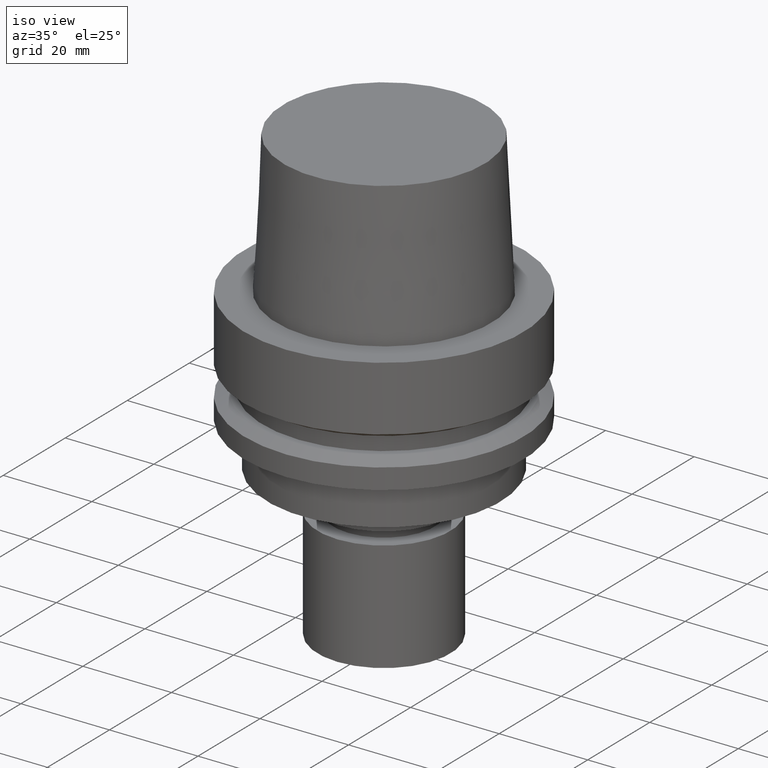
[diagram: clean part render]
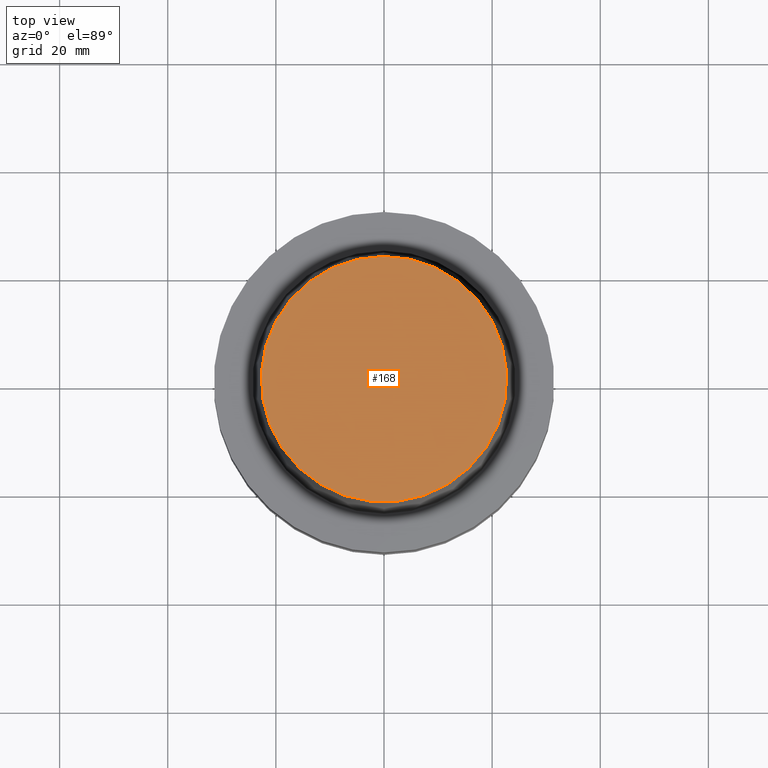
[diagram: tour spotlight — one face highlighted and labeled with its STEP entity id]
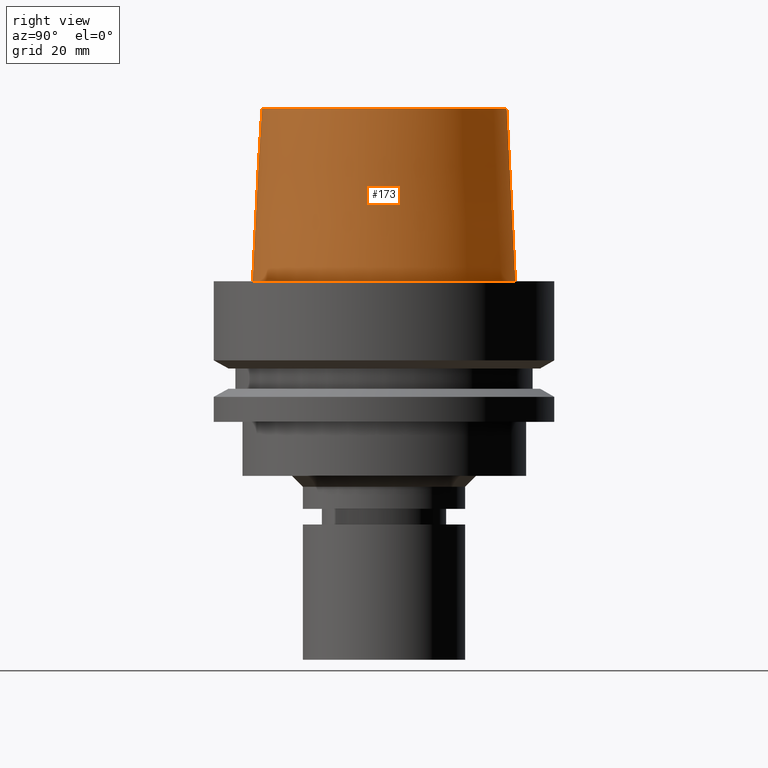
[diagram: tour spotlight — one face highlighted and labeled with its STEP entity id]
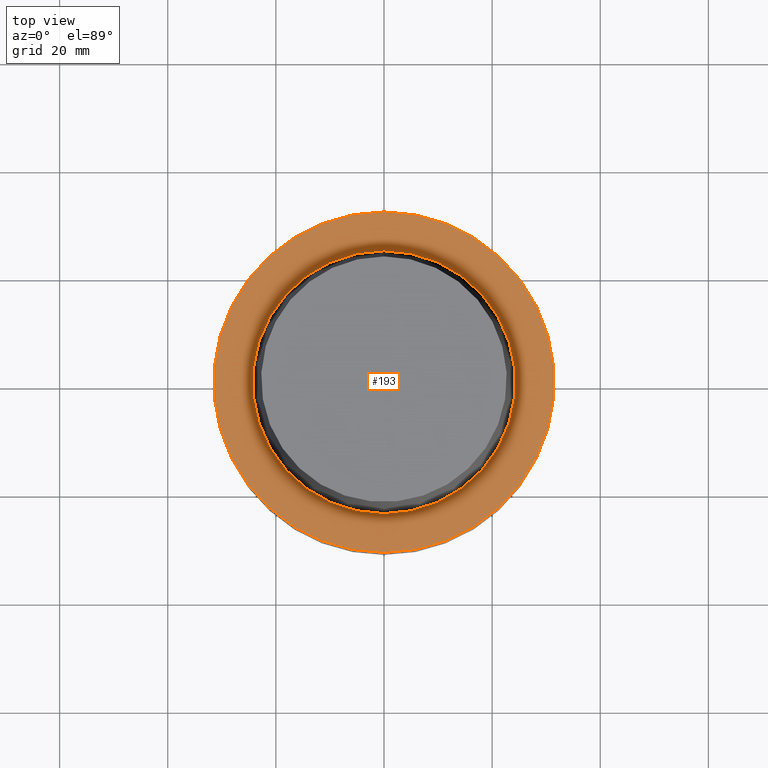
[diagram: tour spotlight — one face highlighted and labeled with its STEP entity id]
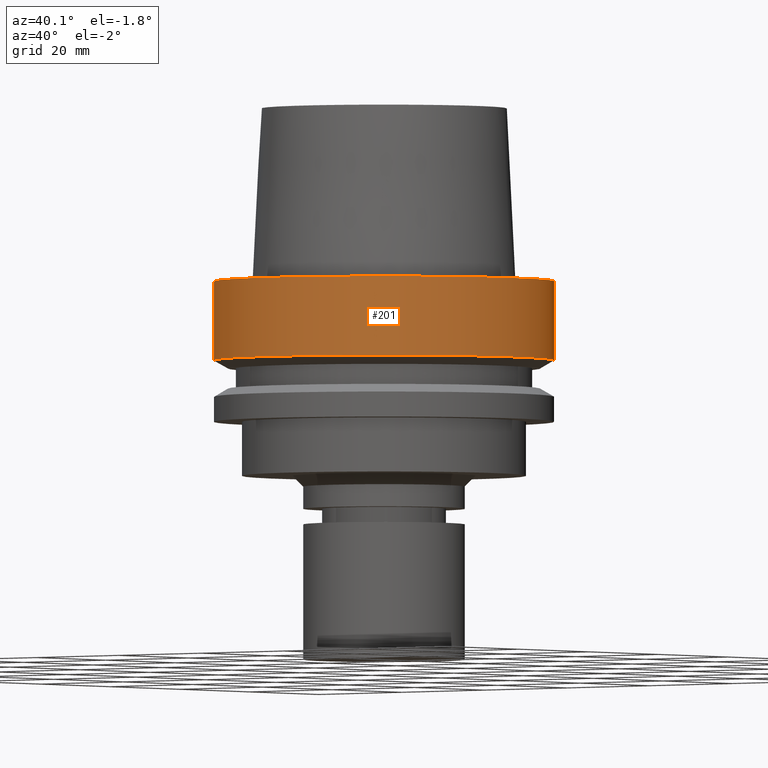
[diagram: tour spotlight — one face highlighted and labeled with its STEP entity id]
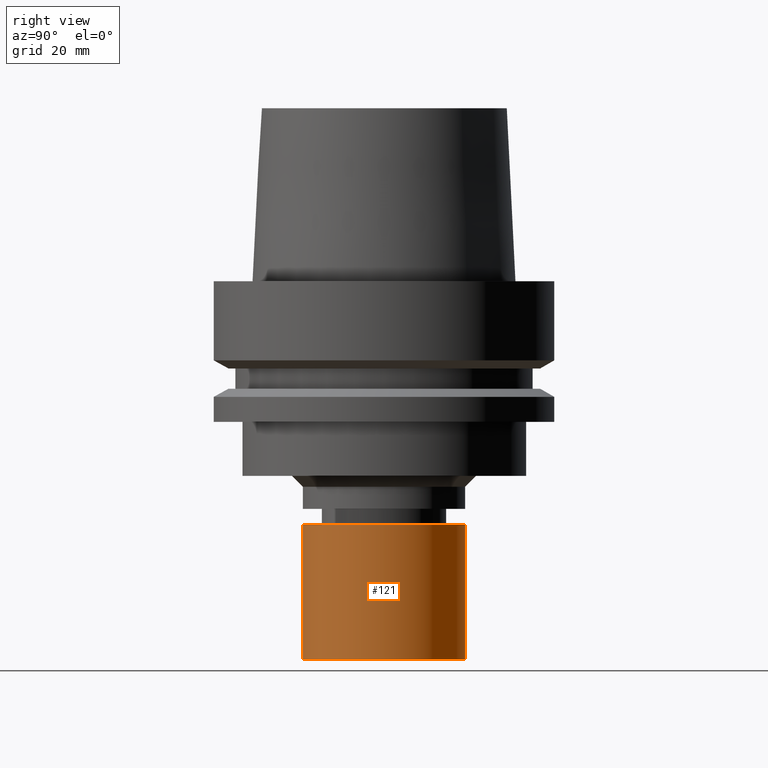
[diagram: tour spotlight — one face highlighted and labeled with its STEP entity id]
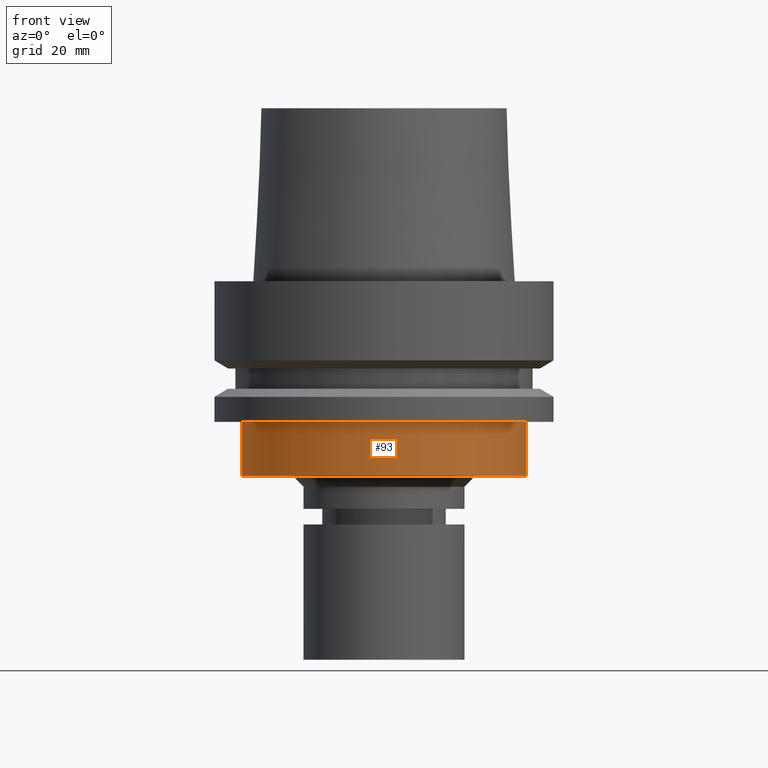
[diagram: tour spotlight — one face highlighted and labeled with its STEP entity id]
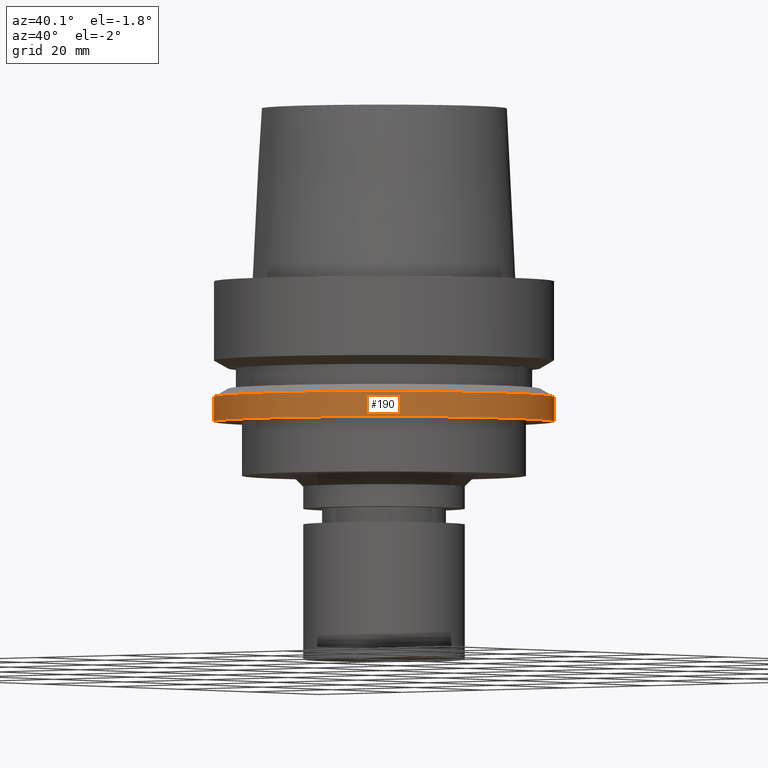
[diagram: tour spotlight — one face highlighted and labeled with its STEP entity id]
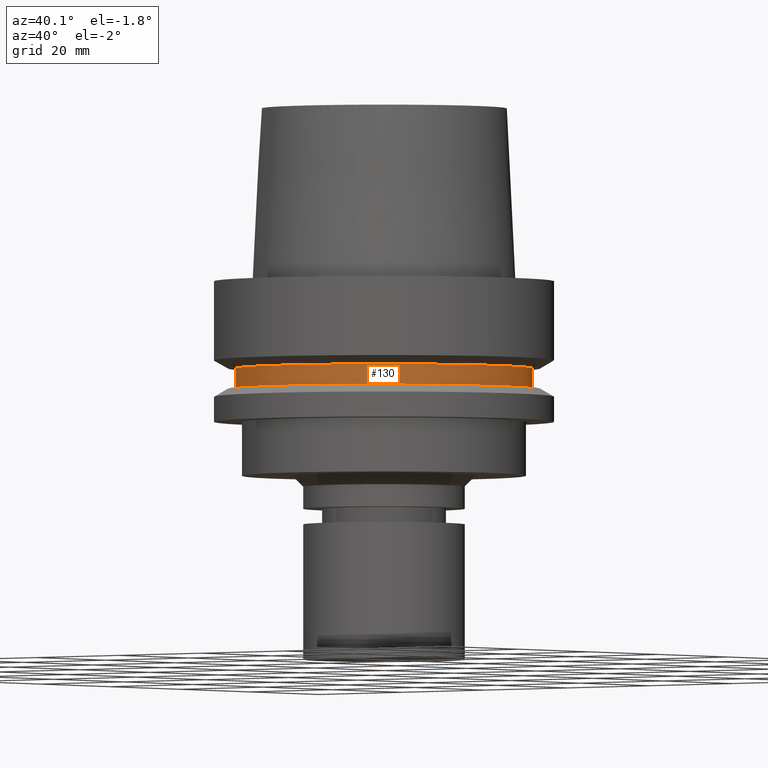
[diagram: tour spotlight — one face highlighted and labeled with its STEP entity id]
A machine part: a face-by-face anatomy tour. The part has 24 B-rep faces; the first image is the clean iso view, then the 8 largest visible faces are spotlighted one at a time (largest first), each with its STEP entity span.

Face 1 — top view, entity #168. In plain terms, the highlighted planar face has unit normal (-0, 0, 1).
Definition (entity closure, byte-faithful):
#168=ADVANCED_FACE('Unnamed[1]',(#355),#356,.T.);
#175=EDGE_CURVE('Unnamed[1]',#366,#366,#367,.T.);
#355=FACE_OUTER_BOUND('',#587,.T.);
#356=PLANE('',#588);
#366=VERTEX_POINT('',#601);
#367=CIRCLE('',#602,22.715);
#587=EDGE_LOOP('',(#800));
#588=AXIS2_PLACEMENT_3D('',#801,#802,#803);
#601=CARTESIAN_POINT('',(-1.95943487863576E-015,22.715,32.0));
#602=AXIS2_PLACEMENT_3D('',#813,#814,#815);
#800=ORIENTED_EDGE('',*,*,#175,.T.);
#801=CARTESIAN_POINT('',(-1.95943487863576E-015,11.3575,32.0));
#802=DIRECTION('',(-6.12323399573677E-017,9.72362339746437E-016,1.0));
#803=DIRECTION('',(5.47128686183263E-032,1.0,-9.72362339746437E-016));
#813=CARTESIAN_POINT('',(-1.95943487863576E-015,-3.91886975727153E-015,32.0));
#814=DIRECTION('',(-6.12323399573676E-017,-1.22464679914732E-016,1.0));
#815=DIRECTION('',(-1.23259516440784E-032,1.0,1.22464679914732E-016));

Face 2 — right view, entity #173. In plain terms, the highlighted conical surface has half-angle 2.862 deg.
Definition (entity closure, byte-faithful):
#114=EDGE_CURVE('Unnamed[1]',#272,#272,#273,.T.);
#173=ADVANCED_FACE('Unnamed[1]',(#362,#363),#364,.T.);
#175=EDGE_CURVE('Unnamed[1]',#366,#366,#367,.T.);
#272=VERTEX_POINT('',#484);
#273=CIRCLE('',#485,24.315);
#362=FACE_BOUND('',#596,.T.);
#363=FACE_BOUND('',#597,.T.);
#364=CONICAL_SURFACE('',#598,23.515,0.0499583957219433);
#366=VERTEX_POINT('',#601);
#367=CIRCLE('',#602,22.715);
#484=CARTESIAN_POINT('',(-2.99705514225764E-031,24.315,2.97772869212679E-015));
#485=AXIS2_PLACEMENT_3D('',#709,#710,#711);
#596=EDGE_LOOP('',(#808));
#597=EDGE_LOOP('',(#809));
#598=AXIS2_PLACEMENT_3D('',#810,#811,#812);
#601=CARTESIAN_POINT('',(-1.95943487863576E-015,22.715,32.0));
#602=AXIS2_PLACEMENT_3D('',#813,#814,#815);
#709=CARTESIAN_POINT('',(0.0,0.0,0.0));
#710=DIRECTION('',(-6.12323399573677E-017,-1.22464679914747E-016,1.0));
#711=DIRECTION('',(-1.23259516440776E-032,1.0,1.22464679914747E-016));
#808=ORIENTED_EDGE('',*,*,#175,.F.);
#809=ORIENTED_EDGE('',*,*,#114,.T.);
#810=CARTESIAN_POINT('',(-9.79717439317882E-016,-1.95943487863576E-015,16.0));
#811=DIRECTION('',(6.12323399573677E-017,1.2246467991474E-016,-1.0));
#812=DIRECTION('',(-1.2325951644078E-032,1.0,1.2246467991474E-016));
#813=CARTESIAN_POINT('',(-1.95943487863576E-015,-3.91886975727153E-015,32.0));
#814=DIRECTION('',(-6.12323399573676E-017,-1.22464679914732E-016,1.0));
#815=DIRECTION('',(-1.23259516440784E-032,1.0,1.22464679914732E-016));

Face 3 — top view, entity #193. In plain terms, the highlighted planar face has unit normal (-0, -0, 1).
Definition (entity closure, byte-faithful):
#114=EDGE_CURVE('Unnamed[1]',#272,#272,#273,.T.);
#147=EDGE_CURVE('Unnamed[1]',#324,#324,#325,.T.);
#193=ADVANCED_FACE('Unnamed[1]',(#394,#395),#396,.T.);
#272=VERTEX_POINT('',#484);
#273=CIRCLE('',#485,24.315);
#324=VERTEX_POINT('',#549);
#325=CIRCLE('',#550,31.5000000000001);
#394=FACE_BOUND('',#636,.T.);
#395=FACE_OUTER_BOUND('',#637,.T.);
#396=PLANE('',#638);
#484=CARTESIAN_POINT('',(-2.99705514225764E-031,24.315,2.97772869212679E-015));
#485=AXIS2_PLACEMENT_3D('',#709,#710,#711);
#549=CARTESIAN_POINT('',(-3.88267476788467E-031,31.5000000000001,3.85763741731417E-015));
#550=AXIS2_PLACEMENT_3D('',#768,#769,#770);
#636=EDGE_LOOP('',(#844));
#637=EDGE_LOOP('',(#845));
#638=AXIS2_PLACEMENT_3D('',#846,#847,#848);
#709=CARTESIAN_POINT('',(0.0,0.0,0.0));
#710=DIRECTION('',(-6.12323399573677E-017,-1.22464679914747E-016,1.0));
#711=DIRECTION('',(-1.23259516440776E-032,1.0,1.22464679914747E-016));
#768=CARTESIAN_POINT('',(0.0,0.0,0.0));
#769=DIRECTION('',(-6.12323399573677E-017,-1.22464679914718E-016,1.0));
#770=DIRECTION('',(-1.23259516440783E-032,1.0,1.22464679914718E-016));
#844=ORIENTED_EDGE('',*,*,#114,.F.);
#845=ORIENTED_EDGE('',*,*,#147,.T.);
#846=CARTESIAN_POINT('',(-3.43986495507116E-031,27.9075,3.41768305472048E-015));
#847=DIRECTION('',(-6.12323399573677E-017,-1.22464679914735E-016,1.0));
#848=DIRECTION('',(-1.23259516440783E-032,1.0,1.22464679914735E-016));

Face 4 — auxiliary view, entity #201. In plain terms, the highlighted cylindrical surface (bore or boss wall) has radius 31.5 mm, axis along (-0, -0, 1).
Definition (entity closure, byte-faithful):
#147=EDGE_CURVE('Unnamed[1]',#324,#324,#325,.T.);
#195=EDGE_CURVE('Unnamed[1]',#398,#398,#399,.T.);
#201=ADVANCED_FACE('Unnamed[1]',(#406,#407),#408,.T.);
#324=VERTEX_POINT('',#549);
#325=CIRCLE('',#550,31.5000000000001);
#398=VERTEX_POINT('',#641);
#399=CIRCLE('',#642,31.5);
#406=FACE_BOUND('',#651,.T.);
#407=FACE_BOUND('',#652,.T.);
#408=CYLINDRICAL_SURFACE('',#653,31.5);
#549=CARTESIAN_POINT('',(-3.88267476788467E-031,31.5000000000001,3.85763741731417E-015));
#550=AXIS2_PLACEMENT_3D('',#768,#769,#770);
#641=CARTESIAN_POINT('',(8.95369947681261E-016,31.5,-14.6225009252407));
#642=AXIS2_PLACEMENT_3D('',#849,#850,#851);
#651=EDGE_LOOP('',(#858));
#652=EDGE_LOOP('',(#859));
#653=AXIS2_PLACEMENT_3D('',#860,#861,#862);
#768=CARTESIAN_POINT('',(0.0,0.0,0.0));
#769=DIRECTION('',(-6.12323399573677E-017,-1.22464679914718E-016,1.0));
#770=DIRECTION('',(-1.23259516440783E-032,1.0,1.22464679914718E-016));
#849=CARTESIAN_POINT('',(8.95369947681262E-016,1.79073989536252E-015,-14.6225009252407));
#850=DIRECTION('',(-6.12323399573677E-017,-1.22464679914719E-016,1.0));
#851=DIRECTION('',(-1.23259516440783E-032,1.0,1.22464679914719E-016));
#858=ORIENTED_EDGE('',*,*,#147,.F.);
#859=ORIENTED_EDGE('',*,*,#195,.T.);
#860=CARTESIAN_POINT('',(4.47684973840631E-016,8.95369947681262E-016,-7.31125046262035));
#861=DIRECTION('',(-6.12323399573677E-017,-1.22464679914719E-016,1.0));
#862=DIRECTION('',(-1.23259516440783E-032,1.0,1.22464679914719E-016));

Face 5 — right view, entity #121. In plain terms, the highlighted cylindrical surface (bore or boss wall) has radius 15 mm, axis along (0, 0, -1).
Definition (entity closure, byte-faithful):
#84=EDGE_CURVE('Unnamed[1]',#226,#226,#227,.T.);
#121=ADVANCED_FACE('Unnamed[1]',(#282,#283),#284,.T.);
#160=EDGE_CURVE('Unnamed[1]',#345,#345,#346,.T.);
#226=VERTEX_POINT('',#427);
#227=CIRCLE('',#428,15.0);
#282=FACE_BOUND('',#497,.T.);
#283=FACE_BOUND('',#498,.T.);
#284=CYLINDRICAL_SURFACE('',#499,15.0);
#345=VERTEX_POINT('',#575);
#346=CIRCLE('',#576,15.0000000000001);
#427=CARTESIAN_POINT('',(4.28626379701574E-015,15.0,-70.0));
#428=AXIS2_PLACEMENT_3D('',#660,#661,#662);
#497=EDGE_LOOP('',(#719));
#498=EDGE_LOOP('',(#720));
#499=AXIS2_PLACEMENT_3D('',#721,#722,#723);
#575=CARTESIAN_POINT('',(2.75545529808155E-015,15.0000000000001,-45.0));
#576=AXIS2_PLACEMENT_3D('',#792,#793,#794);
#660=CARTESIAN_POINT('',(4.28626379701574E-015,8.57252759403147E-015,-70.0));
#661=DIRECTION('',(6.12323399573677E-017,1.22464679914735E-016,-1.0));
#662=DIRECTION('',(-1.23259516440783E-032,1.0,1.22464679914735E-016));
#719=ORIENTED_EDGE('',*,*,#84,.F.);
#720=ORIENTED_EDGE('',*,*,#160,.T.);
#721=CARTESIAN_POINT('',(3.52085954754864E-015,7.04171909509728E-015,-57.5));
#722=DIRECTION('',(6.12323399573677E-017,1.22464679914735E-016,-1.0));
#723=DIRECTION('',(-1.23259516440783E-032,1.0,1.22464679914735E-016));
#792=CARTESIAN_POINT('',(2.75545529808155E-015,5.51091059616309E-015,-45.0));
#793=DIRECTION('',(6.12323399573677E-017,1.22464679914735E-016,-1.0));
#794=DIRECTION('',(-1.23259516440783E-032,1.0,1.22464679914735E-016));

Face 6 — front view, entity #93. In plain terms, the highlighted cylindrical surface (bore or boss wall) has radius 26.3 mm, axis along (-0, -0, 1).
Definition (entity closure, byte-faithful):
#93=ADVANCED_FACE('Unnamed[1]',(#238,#239),#240,.T.);
#162=EDGE_CURVE('Unnamed[1]',#348,#348,#349,.T.);
#170=EDGE_CURVE('Unnamed[1]',#358,#358,#359,.T.);
#238=FACE_BOUND('',#441,.T.);
#239=FACE_BOUND('',#442,.T.);
#240=CYLINDRICAL_SURFACE('',#443,26.3);
#348=VERTEX_POINT('',#579);
#349=CIRCLE('',#580,26.3);
#358=VERTEX_POINT('',#591);
#359=CIRCLE('',#592,26.3);
#441=EDGE_LOOP('',(#671));
#442=EDGE_LOOP('',(#672));
#443=AXIS2_PLACEMENT_3D('',#673,#674,#675);
#579=CARTESIAN_POINT('',(2.20436423846524E-015,26.3,-36.0));
#580=AXIS2_PLACEMENT_3D('',#795,#796,#797);
#591=CARTESIAN_POINT('',(1.59204083889154E-015,26.3,-25.9999999999997));
#592=AXIS2_PLACEMENT_3D('',#804,#805,#806);
#671=ORIENTED_EDGE('',*,*,#170,.F.);
#672=ORIENTED_EDGE('',*,*,#162,.T.);
#673=CARTESIAN_POINT('',(1.89820253867839E-015,3.79640507735677E-015,-30.9999999999998));
#674=DIRECTION('',(-6.12323399573677E-017,-1.22464679914732E-016,1.0));
#675=DIRECTION('',(-1.23259516440797E-032,1.0,1.22464679914732E-016));
#795=CARTESIAN_POINT('',(2.20436423846524E-015,4.40872847693047E-015,-36.0));
#796=DIRECTION('',(-6.12323399573677E-017,-1.22464679914732E-016,1.0));
#797=DIRECTION('',(-1.23259516440797E-032,1.0,1.22464679914732E-016));
#804=CARTESIAN_POINT('',(1.59204083889154E-015,3.18408167778308E-015,-25.9999999999997));
#805=DIRECTION('',(-6.12323399573677E-017,-1.22464679914732E-016,1.0));
#806=DIRECTION('',(-1.23259516440797E-032,1.0,1.22464679914732E-016));

Face 7 — auxiliary view, entity #190. In plain terms, the highlighted cylindrical surface (bore or boss wall) has radius 31.5 mm, axis along (-0, -0, 1).
Definition (entity closure, byte-faithful):
#112=EDGE_CURVE('Unnamed[1]',#269,#269,#270,.T.);
#152=EDGE_CURVE('Unnamed[1]',#332,#332,#333,.T.);
#190=ADVANCED_FACE('Unnamed[1]',(#389,#390),#391,.T.);
#269=VERTEX_POINT('',#480);
#270=CIRCLE('',#481,31.5);
#332=VERTEX_POINT('',#559);
#333=CIRCLE('',#560,31.4999999999998);
#389=FACE_BOUND('',#630,.T.);
#390=FACE_BOUND('',#631,.T.);
#391=CYLINDRICAL_SURFACE('',#632,31.4999999999999);
#480=CARTESIAN_POINT('',(1.30899429078397E-015,31.5,-21.3774990747592));
#481=AXIS2_PLACEMENT_3D('',#706,#707,#708);
#559=CARTESIAN_POINT('',(1.59204083889155E-015,31.4999999999998,-25.9999999999999));
#560=AXIS2_PLACEMENT_3D('',#777,#778,#779);
#630=EDGE_LOOP('',(#838));
#631=EDGE_LOOP('',(#839));
#632=AXIS2_PLACEMENT_3D('',#840,#841,#842);
#706=CARTESIAN_POINT('',(1.30899429078397E-015,2.61798858156794E-015,-21.3774990747592));
#707=DIRECTION('',(-6.12323399573677E-017,-1.22464679914719E-016,1.0));
#708=DIRECTION('',(-1.23259516440783E-032,1.0,1.22464679914719E-016));
#777=CARTESIAN_POINT('',(1.59204083889155E-015,3.1840816777831E-015,-25.9999999999999));
#778=DIRECTION('',(-6.12323399573676E-017,-1.22464679914719E-016,1.0));
#779=DIRECTION('',(-1.23259516440784E-032,1.0,1.22464679914719E-016));
#838=ORIENTED_EDGE('',*,*,#112,.F.);
#839=ORIENTED_EDGE('',*,*,#152,.T.);
#840=CARTESIAN_POINT('',(1.45051756483776E-015,2.90103512967552E-015,-23.6887495373796));
#841=DIRECTION('',(-6.12323399573677E-017,-1.22464679914719E-016,1.0));
#842=DIRECTION('',(-1.23259516440783E-032,1.0,1.22464679914719E-016));

Face 8 — auxiliary view, entity #130. In plain terms, the highlighted cylindrical surface (bore or boss wall) has radius 27.5 mm, axis along (-0, -0, 1).
Definition (entity closure, byte-faithful):
#130=ADVANCED_FACE('Unnamed[1]',(#296,#297),#298,.T.);
#145=EDGE_CURVE('Unnamed[1]',#321,#321,#322,.T.);
#177=EDGE_CURVE('Unnamed[1]',#369,#369,#370,.T.);
#296=FACE_BOUND('',#514,.T.);
#297=FACE_BOUND('',#515,.T.);
#298=CYLINDRICAL_SURFACE('',#516,27.4999999999994);
#321=VERTEX_POINT('',#545);
#322=CIRCLE('',#546,27.4999999999989);
#369=VERTEX_POINT('',#605);
#370=CIRCLE('',#606,27.5);
#514=EDGE_LOOP('',(#736));
#515=EDGE_LOOP('',(#737));
#516=AXIS2_PLACEMENT_3D('',#738,#739,#740);
#545=CARTESIAN_POINT('',(1.21699275665276E-015,27.4999999999989,-19.8750000000013));
#546=AXIS2_PLACEMENT_3D('',#765,#766,#767);
#605=CARTESIAN_POINT('',(9.87371481812537E-016,27.5,-16.1249999999997));
#606=AXIS2_PLACEMENT_3D('',#816,#817,#818);
#736=ORIENTED_EDGE('',*,*,#177,.F.);
#737=ORIENTED_EDGE('',*,*,#145,.T.);
#738=CARTESIAN_POINT('',(1.10218211923265E-015,2.2043642384653E-015,-18.0000000000005));
#739=DIRECTION('',(-6.12323399573677E-017,-1.22464679914745E-016,1.0));
#740=DIRECTION('',(-1.23259516440786E-032,1.0,1.22464679914745E-016));
#765=CARTESIAN_POINT('',(1.21699275665276E-015,2.43398551330553E-015,-19.8750000000013));
#766=DIRECTION('',(-6.12323399573677E-017,-1.22464679914747E-016,1.0));
#767=DIRECTION('',(-1.23259516440788E-032,1.0,1.22464679914747E-016));
#816=CARTESIAN_POINT('',(9.87371481812537E-016,1.97474296362507E-015,-16.1249999999997));
#817=DIRECTION('',(-6.12323399573677E-017,-1.22464679914742E-016,1.0));
#818=DIRECTION('',(-1.23259516440783E-032,1.0,1.22464679914742E-016));